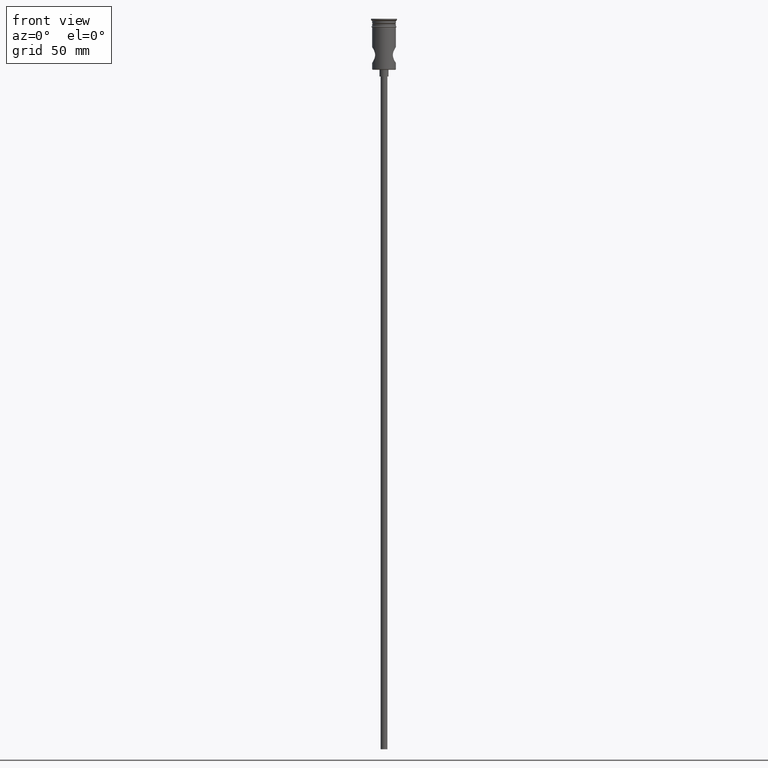
[diagram: clean part render]
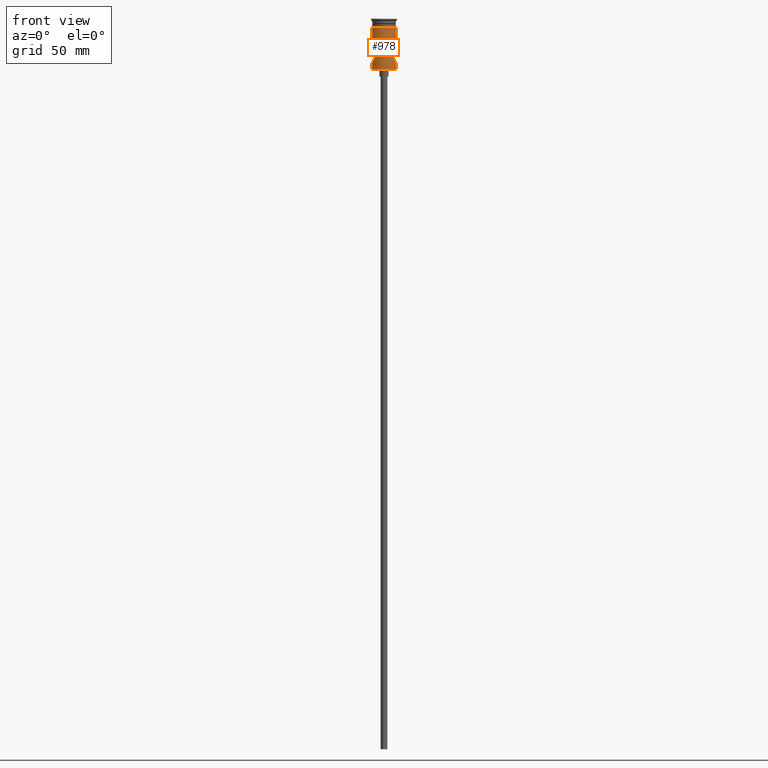
[diagram: same view with one face highlighted and labeled with its STEP entity id]
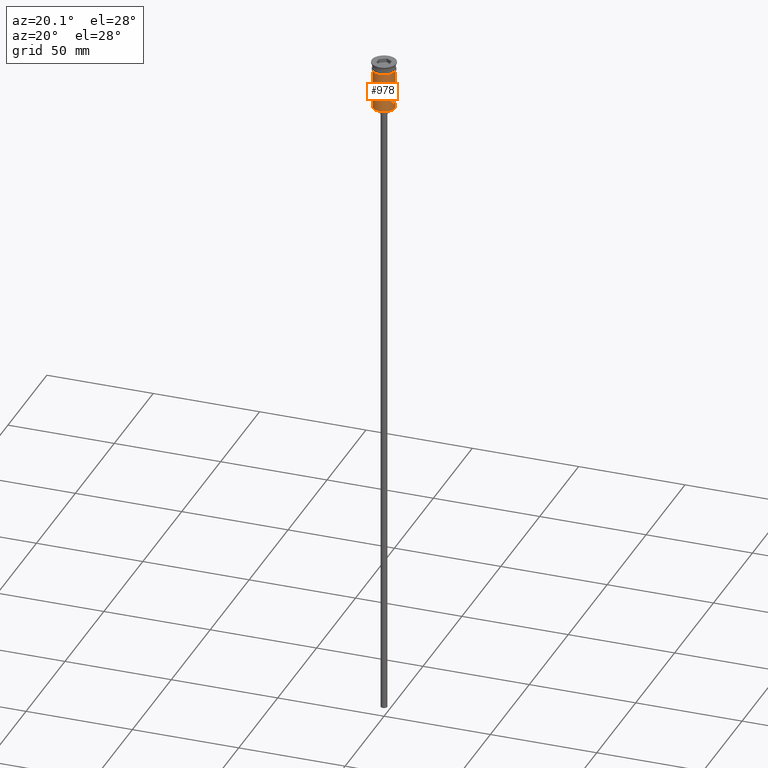
[diagram: same view with one face highlighted and labeled with its STEP entity id]
A machine part, front view. The second image highlights one B-rep face of the part: STEP entity #978.
A second angle (auxiliary view) of the same face is appended — the face is thin or edge-on in the first view.
In plain terms, the highlighted cylindrical surface (edge-blend (fillet) strip) has radius 5.25 mm, axis along (-0, -0, 1).
Its self-contained STEP definition (entity closure, byte-faithful):
#13 = CARTESIAN_POINT ( 'NONE',  ( -4.542868706571997706, -2.637461925376886285, -18.31144200051445381 ) ) ;
#36 = CARTESIAN_POINT ( 'NONE',  ( -4.291847880858497000, -3.027309060174747213, -17.77045454751424103 ) ) ;
#48 = CARTESIAN_POINT ( 'NONE',  ( 5.249999999999997335, 0.000000000000000000, 0.000000000000000000 ) ) ;
#55 = VERTEX_POINT ( 'NONE', #638 ) ;
#56 = CARTESIAN_POINT ( 'NONE',  ( -4.213805231981512023, -3.133507475994600444, -17.57552681985903220 ) ) ;
#64 = CARTESIAN_POINT ( 'NONE',  ( 4.708760133973805218, -2.328399268865064098, -13.37747860927764343 ) ) ;
#76 = CARTESIAN_POINT ( 'NONE',  ( 3.912973667625768925, -3.500162442579392241, -15.76330045747091191 ) ) ;
#85 = CARTESIAN_POINT ( 'NONE',  ( 4.074555398726830369, -3.312536795685569135, -14.84752675069977990 ) ) ;
#91 = CARTESIAN_POINT ( 'NONE',  ( 4.290711569970872219, -3.028956263479463562, -14.23220649750371614 ) ) ;
#105 = B_SPLINE_CURVE_WITH_KNOTS ( 'NONE', 3,
 ( #1173, #1311, #321, #880, #1320, #669, #564, #900, #1010, #13, #1287, #36, #56, #281, #743, #943, #282, #916, #453, #131, #463, #344, #1220, #910, #1231, #1096, #429, #1000, #895, #869, #672, #876, #660, #1314, #1107, #1437 ),
 .UNSPECIFIED., .F., .F.,
 ( 4, 2, 2, 2, 2, 2, 2, 2, 2, 2, 2, 2, 2, 2, 2, 2, 2, 4 ),
 ( 0.000000000000000000, 0.0007069940335760027238, 0.001413988067152005448, 0.002120982100728007955, 0.002827976134304010895, 0.003534970167880013402, 0.004241964201456015909, 0.004948958235032018850, 0.005302455251820025091, 0.005655952268608031332, 0.006362946302184043813, 0.007069940335760057162, 0.007776934369336069644, 0.008483928402912082126, 0.009190922436488094607, 0.009897916470064108824, 0.01060491050364011957, 0.01131190453721613379 ),
 .UNSPECIFIED. ) ;
#112 = CARTESIAN_POINT ( 'NONE',  ( 5.249999999999999112, 0.000000000000000000, -3.799999999999998934 ) ) ;
#113 = CARTESIAN_POINT ( 'NONE',  ( 0.000000000000000000, 0.000000000000000000, -3.799999999999998934 ) ) ;
#131 = CARTESIAN_POINT ( 'NONE',  ( -3.912935558424083915, -3.500205050033671217, -15.76559328519910252 ) ) ;
#137 = DIRECTION ( 'NONE',  ( -0.000000000000000000, -0.000000000000000000, 1.000000000000000000 ) ) ;
#147 = CARTESIAN_POINT ( 'NONE',  ( 5.171446349193719705, -0.9340234967078276940, -19.38121539794984827 ) ) ;
#148 = EDGE_CURVE ( 'NONE', #1265, #248, #1243, .T. ) ;
#160 = DIRECTION ( 'NONE',  ( -0.000000000000000000, -0.000000000000000000, 1.000000000000000000 ) ) ;
#175 = DIRECTION ( 'NONE',  ( -0.000000000000000000, -0.000000000000000000, 1.000000000000000000 ) ) ;
#185 = VERTEX_POINT ( 'NONE', #522 ) ;
#194 = CARTESIAN_POINT ( 'NONE',  ( -5.249999999999997335, 6.429395695523601195E-16, 0.000000000000000000 ) ) ;
#197 = CARTESIAN_POINT ( 'NONE',  ( 4.793649463825864210, -2.150235679629801222, -18.77070743917914442 ) ) ;
#204 = CARTESIAN_POINT ( 'NONE',  ( 4.211358233975349030, -3.136775979440170392, -14.43100953861070757 ) ) ;
#218 = CARTESIAN_POINT ( 'NONE',  ( -5.249999999999997335, 6.429395695523601195E-16, -22.30000000000006466 ) ) ;
#231 = AXIS2_PLACEMENT_3D ( 'NONE', #1307, #310, #985 ) ;
#248 = VERTEX_POINT ( 'NONE', #854 ) ;
#250 = LINE ( 'NONE', #48, #805 ) ;
#251 = VECTOR ( 'NONE', #893, 1000.000000000000000 ) ;
#281 = CARTESIAN_POINT ( 'NONE',  ( -4.076450620869312758, -3.310222646711699301, -17.15912893648900450 ) ) ;
#282 = CARTESIAN_POINT ( 'NONE',  ( -3.940413688538168646, -3.469280093805878540, -16.47760714426993189 ) ) ;
#310 = DIRECTION ( 'NONE',  ( -0.000000000000000000, -0.000000000000000000, 1.000000000000000000 ) ) ;
#319 = ORIENTED_EDGE ( 'NONE', *, *, #1113, .F. ) ;
#321 = CARTESIAN_POINT ( 'NONE',  ( -5.233705508463599720, -0.4736751586742008469, -19.47569040078916203 ) ) ;
#323 = CARTESIAN_POINT ( 'NONE',  ( 5.249999999999997335, 9.037561610381727207E-20, -12.50000000000000000 ) ) ;
#344 = CARTESIAN_POINT ( 'NONE',  ( -4.015700048634970543, -3.382383198169306660, -15.06996144822463179 ) ) ;
#362 = CIRCLE ( 'NONE', #1002, 5.249999999999997335 ) ;
#364 = CARTESIAN_POINT ( 'NONE',  ( -5.249999999999997335, 0.000000000000000000, -19.50000000000000000 ) ) ;
#368 = CIRCLE ( 'NONE', #485, 5.249999999999999112 ) ;
#401 = CARTESIAN_POINT ( 'NONE',  ( 4.455882725706746150, -2.780268144892072968, -13.86229586798407887 ) ) ;
#427 = CARTESIAN_POINT ( 'NONE',  ( 4.076244073135415036, -3.310471843351305843, -17.15838242263341229 ) ) ;
#429 = CARTESIAN_POINT ( 'NONE',  ( -4.542248346412463000, -2.638603940227049804, -13.68972905434602971 ) ) ;
#452 = VERTEX_POINT ( 'NONE', #112 ) ;
#453 = CARTESIAN_POINT ( 'NONE',  ( -3.913212435243750065, -3.499895492128140884, -16.12176624835053573 ) ) ;
#459 = VECTOR ( 'NONE', #137, 1000.000000000000000 ) ;
#463 = CARTESIAN_POINT ( 'NONE',  ( -3.934500147216332344, -3.476502778859750897, -15.53158113228982806 ) ) ;
#475 = EDGE_CURVE ( 'NONE', #981, #452, #250, .T. ) ;
#485 = AXIS2_PLACEMENT_3D ( 'NONE', #113, #999, #1335 ) ;
#520 = CARTESIAN_POINT ( 'NONE',  ( 3.913265713256699474, -3.499835925500728528, -16.24147938307707051 ) ) ;
#522 = CARTESIAN_POINT ( 'NONE',  ( -5.249999999999997335, 6.428491939192731130E-16, -12.50000000000000000 ) ) ;
#528 = VERTEX_POINT ( 'NONE', #218 ) ;
#535 = CARTESIAN_POINT ( 'NONE',  ( 4.015860184454198567, -3.382190437898871416, -15.06951789628485727 ) ) ;
#541 = CARTESIAN_POINT ( 'NONE',  ( 4.941870577857391922, -1.783409467750110000, -12.98008101414071547 ) ) ;
#564 = CARTESIAN_POINT ( 'NONE',  ( -4.943096194098154150, -1.780193258326856931, -19.02194769508573202 ) ) ;
#583 = CARTESIAN_POINT ( 'NONE',  ( 5.249999999999995559, -0.2391654009334196473, -19.49999999999999645 ) ) ;
#589 = ORIENTED_EDGE ( 'NONE', *, *, #733, .F. ) ;
#594 = CARTESIAN_POINT ( 'NONE',  ( 5.249999999999997335, 0.000000000000000000, 0.000000000000000000 ) ) ;
#599 = DIRECTION ( 'NONE',  ( -0.000000000000000000, -0.000000000000000000, 1.000000000000000000 ) ) ;
#613 = ORIENTED_EDGE ( 'NONE', *, *, #148, .T. ) ;
#615 = EDGE_CURVE ( 'NONE', #528, #1265, #362, .T. ) ;
#634 = CARTESIAN_POINT ( 'NONE',  ( 4.943496079229932505, -1.778885936374027255, -19.02256480771651681 ) ) ;
#638 = CARTESIAN_POINT ( 'NONE',  ( -5.249999999999998224, 6.429395695523602181E-16, -3.799999999999998934 ) ) ;
#649 = CARTESIAN_POINT ( 'NONE',  ( 5.010287030224574778, -1.583769054670559395, -12.87024185501964624 ) ) ;
#660 = CARTESIAN_POINT ( 'NONE',  ( -5.171017401262786528, -0.9368000147816665235, -12.61943741575976219 ) ) ;
#669 = CARTESIAN_POINT ( 'NONE',  ( -5.011119671772967799, -1.580839205956426685, -19.13107480940701421 ) ) ;
#672 = CARTESIAN_POINT ( 'NONE',  ( -5.010722034647407064, -1.582225660229890307, -12.86955452061876848 ) ) ;
#715 = VERTEX_POINT ( 'NONE', #364 ) ;
#733 = EDGE_CURVE ( 'NONE', #715, #185, #105, .T. ) ;
#743 = CARTESIAN_POINT ( 'NONE',  ( -4.017161582871403347, -3.380647649991994186, -16.93567858667558923 ) ) ;
#747 = CARTESIAN_POINT ( 'NONE',  ( 4.459834455484655180, -2.792467526987480575, -18.15591097312378110 ) ) ;
#760 = CARTESIAN_POINT ( 'NONE',  ( 5.125624017123612042, -1.157272214673059407, -12.68874170657910661 ) ) ;
#769 = CARTESIAN_POINT ( 'NONE',  ( 5.249999999999997335, -0.2356573567156187154, -12.50000000000000178 ) ) ;
#805 = VECTOR ( 'NONE', #599, 1000.000000000000000 ) ;
#822 = ORIENTED_EDGE ( 'NONE', *, *, #475, .T. ) ;
#825 = ORIENTED_EDGE ( 'NONE', *, *, #1019, .F. ) ;
#851 = CARTESIAN_POINT ( 'NONE',  ( 4.282019573606241636, -3.045778496349780262, -17.78256220141813060 ) ) ;
#854 = CARTESIAN_POINT ( 'NONE',  ( 5.249999999999997335, 0.000000000000000000, -19.50000000000000000 ) ) ;
#860 = FACE_OUTER_BOUND ( 'NONE', #1093, .T. ) ;
#869 = CARTESIAN_POINT ( 'NONE',  ( -4.941524827079388338, -1.784271681777893637, -12.98066119771261739 ) ) ;
#876 = CARTESIAN_POINT ( 'NONE',  ( -5.125401452483049347, -1.158029921580444821, -12.68909474010616023 ) ) ;
#880 = CARTESIAN_POINT ( 'NONE',  ( -5.171738567981855716, -0.9322884155218372770, -19.38166086832590551 ) ) ;
#893 = DIRECTION ( 'NONE',  ( -0.000000000000000000, -0.000000000000000000, 1.000000000000000000 ) ) ;
#895 = CARTESIAN_POINT ( 'NONE',  ( -4.791879949463428545, -2.154107611278241574, -13.23235612182024212 ) ) ;
#900 = CARTESIAN_POINT ( 'NONE',  ( -4.791726953342657858, -2.154678821938329047, -18.76742029390492661 ) ) ;
#910 = CARTESIAN_POINT ( 'NONE',  ( -4.211626988821404183, -3.136439829262894108, -14.43012365747861736 ) ) ;
#914 = CARTESIAN_POINT ( 'NONE',  ( 5.249999999999997335, 0.000000000000000000, -19.50000000000000000 ) ) ;
#916 = CARTESIAN_POINT ( 'NONE',  ( -3.918847831090380041, -3.493622200933426569, -16.24210921229989424 ) ) ;
#943 = CARTESIAN_POINT ( 'NONE',  ( -3.956270316689133537, -3.451288398606817687, -16.59344471299514368 ) ) ;
#957 = CARTESIAN_POINT ( 'NONE',  ( 5.249999999999997335, 9.037561610381727207E-20, -12.50000000000000000 ) ) ;
#964 = CARTESIAN_POINT ( 'NONE',  ( 4.017013811892041986, -3.380824786493573431, -16.93520940805085928 ) ) ;
#971 = CARTESIAN_POINT ( 'NONE',  ( 5.124746031636080446, -1.160605218168686559, -19.30988035096184774 ) ) ;
#978 = ADVANCED_FACE ( 'NONE', ( #860 ), #1191, .T. ) ;
#981 = VERTEX_POINT ( 'NONE', #957 ) ;
#985 = DIRECTION ( 'NONE',  ( 1.000000000000000000, 0.000000000000000000, 0.000000000000000000 ) ) ;
#999 = DIRECTION ( 'NONE',  ( -0.000000000000000000, -0.000000000000000000, 1.000000000000000000 ) ) ;
#1000 = CARTESIAN_POINT ( 'NONE',  ( -4.710700327440311419, -2.324554412983744989, -13.37397079666040334 ) ) ;
#1002 = AXIS2_PLACEMENT_3D ( 'NONE', #1382, #175, #1180 ) ;
#1010 = CARTESIAN_POINT ( 'NONE',  ( -4.710272676435011796, -2.325337138264823800, -18.62521936663612010 ) ) ;
#1019 = EDGE_CURVE ( 'NONE', #981, #248, #1254, .T. ) ;
#1027 = CARTESIAN_POINT ( 'NONE',  ( 5.233651169580556761, -0.4745025501927485623, -19.47560998813100142 ) ) ;
#1069 = CARTESIAN_POINT ( 'NONE',  ( 5.010881149324092121, -1.581485525877044829, -19.13068937161849803 ) ) ;
#1076 = CARTESIAN_POINT ( 'NONE',  ( 4.541142868155102263, -2.640433033719364886, -13.69193262782664000 ) ) ;
#1093 = EDGE_LOOP ( 'NONE', ( #319, #1277, #613, #825, #822, #1381, #1338, #589 ) ) ;
#1096 = CARTESIAN_POINT ( 'NONE',  ( -4.455965565348066093, -2.780112593366053542, -13.86216665491766697 ) ) ;
#1107 = CARTESIAN_POINT ( 'NONE',  ( -5.250000000000000000, -0.2359691128690696027, -12.50000000000000711 ) ) ;
#1113 = EDGE_CURVE ( 'NONE', #528, #715, #1245, .T. ) ;
#1154 = EDGE_CURVE ( 'NONE', #55, #452, #368, .T. ) ;
#1162 = CARTESIAN_POINT ( 'NONE',  ( 3.934854629125831060, -3.476098995561848870, -15.52910205287917300 ) ) ;
#1172 = LINE ( 'NONE', #194, #1366 ) ;
#1173 = CARTESIAN_POINT ( 'NONE',  ( -5.249999999999997335, 0.000000000000000000, -19.50000000000000000 ) ) ;
#1178 = CARTESIAN_POINT ( 'NONE',  ( 4.710874926819404784, -2.324119615847294984, -18.62629487387890848 ) ) ;
#1180 = DIRECTION ( 'NONE',  ( -1.000000000000000000, 0.000000000000000000, 0.000000000000000000 ) ) ;
#1185 = CARTESIAN_POINT ( 'NONE',  ( 4.791591092289863241, -2.154829214170282725, -13.23284061381126975 ) ) ;
#1191 = CYLINDRICAL_SURFACE ( 'NONE', #231, 5.249999999999997335 ) ;
#1200 = CARTESIAN_POINT ( 'NONE',  ( 5.233633430427243383, -0.4750094798020726428, -12.52441511600401824 ) ) ;
#1208 = CARTESIAN_POINT ( 'NONE',  ( -5.249999999999997335, 6.429395695523601195E-16, 0.000000000000000000 ) ) ;
#1220 = CARTESIAN_POINT ( 'NONE',  ( -4.073963173537559435, -3.313288510862783642, -14.84939764593512557 ) ) ;
#1231 = CARTESIAN_POINT ( 'NONE',  ( -4.291292931424322887, -3.028111643923960372, -14.23084841941946976 ) ) ;
#1243 = LINE ( 'NONE', #594, #459 ) ;
#1245 = LINE ( 'NONE', #1208, #251 ) ;
#1251 = CARTESIAN_POINT ( 'NONE',  ( 5.249999999999997335, 0.000000000000000000, -22.30000000000006466 ) ) ;
#1254 = B_SPLINE_CURVE_WITH_KNOTS ( 'NONE', 3,
 ( #323, #769, #1200, #1424, #760, #649, #541, #1185, #64, #1076, #401, #91, #204, #85, #535, #1162, #76, #520, #1407, #964, #427, #851, #747, #1178, #197, #634, #1069, #971, #147, #1027, #583, #914 ),
 .UNSPECIFIED., .F., .F.,
 ( 4, 2, 2, 2, 2, 2, 2, 2, 2, 2, 2, 2, 2, 2, 2, 4 ),
 ( 0.01131190453721613205, 0.01201796450896624319, 0.01272402448071635259, 0.01343008445246646372, 0.01413614442421657486, 0.01484220439596668599, 0.01554826436771679712, 0.01625432433946690652, 0.01696038431121701939, 0.01766644428296712879, 0.01837250425471723819, 0.01978462419821747087, 0.02049068416996758721, 0.02119674414171770355, 0.02190280411346781642, 0.02260886408521793275 ),
 .UNSPECIFIED. ) ;
#1265 = VERTEX_POINT ( 'NONE', #1251 ) ;
#1277 = ORIENTED_EDGE ( 'NONE', *, *, #615, .T. ) ;
#1287 = CARTESIAN_POINT ( 'NONE',  ( -4.456129832326547024, -2.779831882631588424, -18.13814034968121192 ) ) ;
#1307 = CARTESIAN_POINT ( 'NONE',  ( 0.000000000000000000, 0.000000000000000000, 0.000000000000000000 ) ) ;
#1311 = CARTESIAN_POINT ( 'NONE',  ( -5.249999999999997335, -0.2394817979535391328, -19.49999999999999645 ) ) ;
#1314 = CARTESIAN_POINT ( 'NONE',  ( -5.233763254461207381, -0.4740647931550001082, -12.52421804113796000 ) ) ;
#1318 = EDGE_CURVE ( 'NONE', #185, #55, #1172, .T. ) ;
#1320 = CARTESIAN_POINT ( 'NONE',  ( -5.125279937689080967, -1.158394803269064743, -19.31071042783137059 ) ) ;
#1335 = DIRECTION ( 'NONE',  ( 1.000000000000000000, 0.000000000000000000, 0.000000000000000000 ) ) ;
#1338 = ORIENTED_EDGE ( 'NONE', *, *, #1318, .F. ) ;
#1366 = VECTOR ( 'NONE', #160, 1000.000000000000000 ) ;
#1381 = ORIENTED_EDGE ( 'NONE', *, *, #1154, .F. ) ;
#1382 = CARTESIAN_POINT ( 'NONE',  ( 0.000000000000000000, 0.000000000000000000, -22.30000000000006466 ) ) ;
#1407 = CARTESIAN_POINT ( 'NONE',  ( 3.935709764125989718, -3.475135228226967854, -16.47752279465179015 ) ) ;
#1424 = CARTESIAN_POINT ( 'NONE',  ( 5.171157607198457740, -0.9357787620484788738, -12.61922458594744434 ) ) ;
#1437 = CARTESIAN_POINT ( 'NONE',  ( -5.249999999999997335, 6.428491939192731130E-16, -12.50000000000000000 ) ) ;